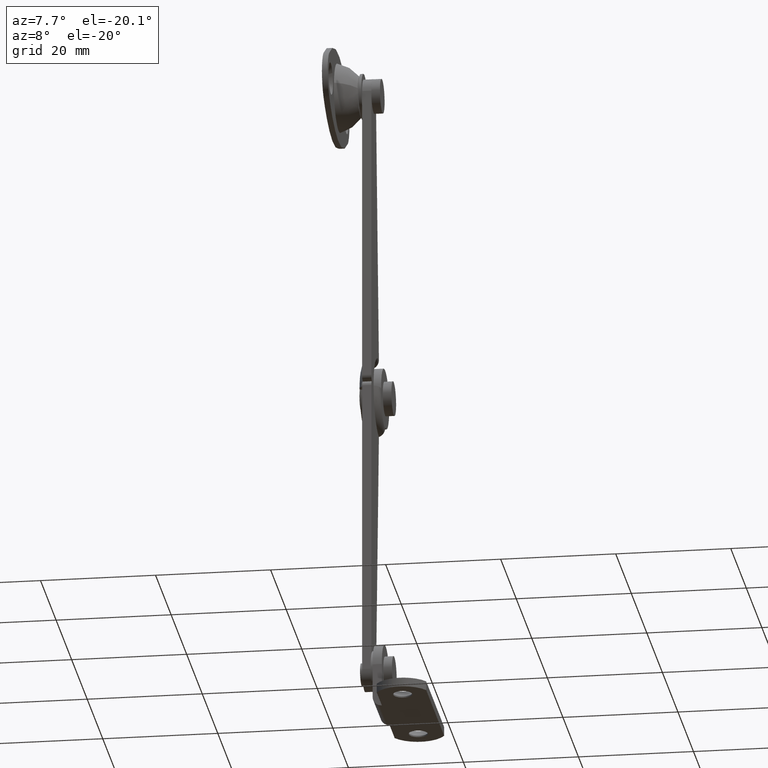
[diagram: clean part render]
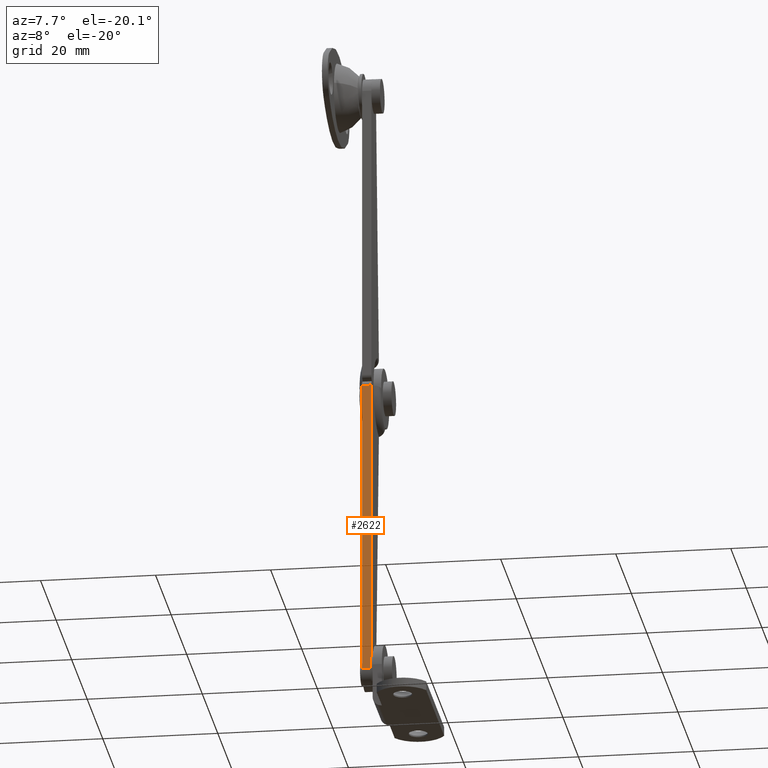
[diagram: same view with one face highlighted and labeled with its STEP entity id]
A machine part, auxiliary view. The second image highlights one B-rep face of the part: STEP entity #2622.
In plain terms, the highlighted face is a freeform B-spline surface patch.
Its self-contained STEP definition (entity closure, byte-faithful):
#2443=CARTESIAN_POINT('',(5.499999999999900,-3.0,-52.999984999999697));
#2444=VERTEX_POINT('',#2443);
#2456=CARTESIAN_POINT('',(5.499999999999909,-2.999999999999885,-0.999999999999773));
#2457=VERTEX_POINT('',#2456);
#2458=CARTESIAN_POINT('',(5.499999999999909,-2.999999999999885,-0.999999999999773));
#2459=CARTESIAN_POINT('',(5.499999999999900,-3.0,-52.999984999999697));
#2460=QUASI_UNIFORM_CURVE('',1,(#2458,#2459),.UNSPECIFIED.,.F.,.U.);
#2461=EDGE_CURVE('',#2457,#2444,#2460,.T.);
#2580=CARTESIAN_POINT('',(7.100006000000000,-3.0,-52.999984999999697));
#2581=VERTEX_POINT('',#2580);
#2593=CARTESIAN_POINT('',(7.100006000000000,-3.0,-52.999984999999697));
#2594=CARTESIAN_POINT('',(5.499999999999900,-3.0,-52.999984999999697));
#2595=QUASI_UNIFORM_CURVE('',1,(#2593,#2594),.UNSPECIFIED.,.F.,.U.);
#2596=EDGE_CURVE('',#2581,#2444,#2595,.T.);
#2601=CARTESIAN_POINT('',(5.420079697684671,-2.999999999999885,1.597399149964163));
#2602=CARTESIAN_POINT('',(5.420079697684671,-2.999999999999885,-55.597385544711933));
#2603=CARTESIAN_POINT('',(7.179926459672081,-2.999999999999885,1.597399149964163));
#2604=CARTESIAN_POINT('',(7.179926459672082,-2.999999999999885,-55.597385544711933));
#2605=B_SPLINE_SURFACE_WITH_KNOTS('',1,1,((#2601,#2603),(#2602,#2604)),.UNSPECIFIED.,.F.,.F.,.U.,(2,2),(2,2),(0.0,57.194784694676102),(0.041708331971243,0.958291749985144),.UNSPECIFIED.);
#2606=ORIENTED_EDGE('',*,*,#2461,.T.);
#2607=ORIENTED_EDGE('',*,*,#2596,.F.);
#2608=CARTESIAN_POINT('',(7.100006000000000,-2.999999999999885,-0.999999999999773));
#2609=VERTEX_POINT('',#2608);
#2610=CARTESIAN_POINT('',(7.100006000000000,-2.999999999999885,-0.999999999999773));
#2611=CARTESIAN_POINT('',(7.100006000000000,-3.0,-52.999984999999697));
#2612=QUASI_UNIFORM_CURVE('',1,(#2610,#2611),.UNSPECIFIED.,.F.,.U.);
#2613=EDGE_CURVE('',#2609,#2581,#2612,.T.);
#2614=ORIENTED_EDGE('',*,*,#2613,.F.);
#2615=CARTESIAN_POINT('',(7.100006000000000,-2.999999999999885,-0.999999999999773));
#2616=CARTESIAN_POINT('',(5.499999999999909,-2.999999999999885,-0.999999999999773));
#2617=QUASI_UNIFORM_CURVE('',1,(#2615,#2616),.UNSPECIFIED.,.F.,.U.);
#2618=EDGE_CURVE('',#2609,#2457,#2617,.T.);
#2619=ORIENTED_EDGE('',*,*,#2618,.T.);
#2620=EDGE_LOOP('',(#2606,#2607,#2614,#2619));
#2621=FACE_OUTER_BOUND('',#2620,.T.);
#2622=ADVANCED_FACE('',(#2621),#2605,.T.);